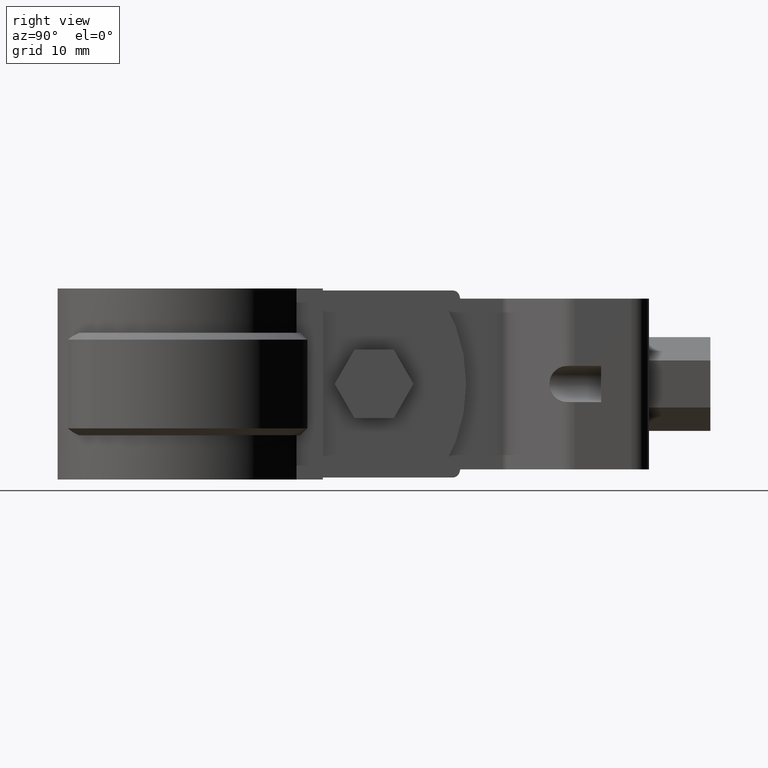
[diagram: clean part render]
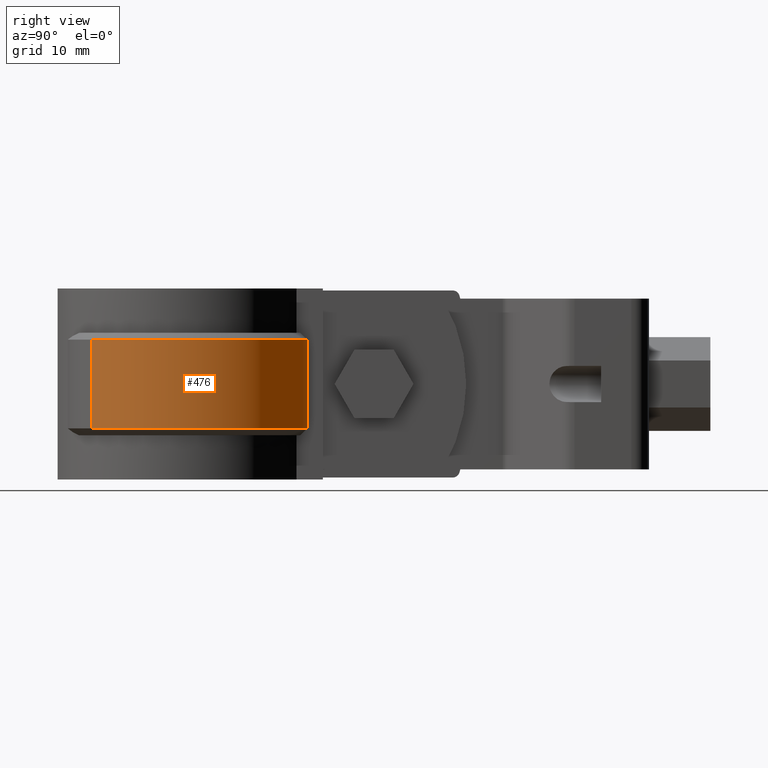
[diagram: same view with one face highlighted and labeled with its STEP entity id]
A machine part, right view. The second image highlights one B-rep face of the part: STEP entity #476.
In plain terms, the highlighted cylindrical surface (partial cylindrical patch) has radius 19.535 mm, axis along (0, 0, -1).
Its self-contained STEP definition (entity closure, byte-faithful):
#476 = ADVANCED_FACE( '', ( #922 ), #923, .T. );
#922 = FACE_OUTER_BOUND( '', #2059, .T. );
#923 = CYLINDRICAL_SURFACE( '', #2060, 19.5350000000000 );
#2059 = EDGE_LOOP( '', ( #4686, #4687, #4688, #4689 ) );
#2060 = AXIS2_PLACEMENT_3D( '', #4690, #4691, #4692 );
#4686 = ORIENTED_EDGE( '', *, *, #6750, .F. );
#4687 = ORIENTED_EDGE( '', *, *, #6775, .T. );
#4688 = ORIENTED_EDGE( '', *, *, #6784, .F. );
#4689 = ORIENTED_EDGE( '', *, *, #6771, .T. );
#4690 = CARTESIAN_POINT( '', ( 8.67361737988404E-016, 0.000000000000000, -20.0000000000000 ) );
#4691 = DIRECTION( '', ( 0.000000000000000, 0.000000000000000, -1.00000000000000 ) );
#4692 = DIRECTION( '', ( 0.261069874584080, 0.965319905826381, 0.000000000000000 ) );
#6750 = EDGE_CURVE( '', #7866, #7868, #7869, .F. );
#6771 = EDGE_CURVE( '', #7904, #7868, #7905, .T. );
#6775 = EDGE_CURVE( '', #7866, #7899, #7910, .F. );
#6784 = EDGE_CURVE( '', #7904, #7899, #7921, .T. );
#7866 = VERTEX_POINT( '', #10863 );
#7868 = VERTEX_POINT( '', #10868 );
#7869 = LINE( '', #10869, #10870 );
#7899 = VERTEX_POINT( '', #10921 );
#7904 = VERTEX_POINT( '', #10927 );
#7905 = CIRCLE( '', #10928, 19.5350000000000 );
#7910 = CIRCLE( '', #10934, 19.5350000000000 );
#7921 = LINE( '', #10947, #10948 );
#10863 = CARTESIAN_POINT( '', ( 6.10000000000001, 18.5581848519730, -6.00000000000000 ) );
#10868 = CARTESIAN_POINT( '', ( 6.10000000000001, 18.5581848519730, -19.0000000000000 ) );
#10869 = CARTESIAN_POINT( '', ( 6.10000000000001, 18.5581848519730, -20.0000000000000 ) );
#10870 = VECTOR( '', #12768, 1000.00000000000 );
#10921 = CARTESIAN_POINT( '', ( 14.5540076052262, -13.0306211527700, -6.00000000000000 ) );
#10927 = CARTESIAN_POINT( '', ( 14.5540076052262, -13.0306211527700, -19.0000000000000 ) );
#10928 = AXIS2_PLACEMENT_3D( '', #12800, #12801, #12802 );
#10934 = AXIS2_PLACEMENT_3D( '', #12810, #12811, #12812 );
#10947 = CARTESIAN_POINT( '', ( 14.5540076052262, -13.0306211527700, -20.0000000000000 ) );
#10948 = VECTOR( '', #12833, 1000.00000000000 );
#12768 = DIRECTION( '', ( 0.000000000000000, 0.000000000000000, 1.00000000000000 ) );
#12800 = CARTESIAN_POINT( '', ( 8.67361737988404E-016, 0.000000000000000, -19.0000000000000 ) );
#12801 = DIRECTION( '', ( 0.000000000000000, 0.000000000000000, 1.00000000000000 ) );
#12802 = DIRECTION( '', ( 1.00000000000000, 0.000000000000000, 0.000000000000000 ) );
#12810 = CARTESIAN_POINT( '', ( 8.67361737988404E-016, 0.000000000000000, -6.00000000000000 ) );
#12811 = DIRECTION( '', ( 0.000000000000000, 0.000000000000000, 1.00000000000000 ) );
#12812 = DIRECTION( '', ( 1.00000000000000, 0.000000000000000, 0.000000000000000 ) );
#12833 = DIRECTION( '', ( 0.000000000000000, 0.000000000000000, 1.00000000000000 ) );